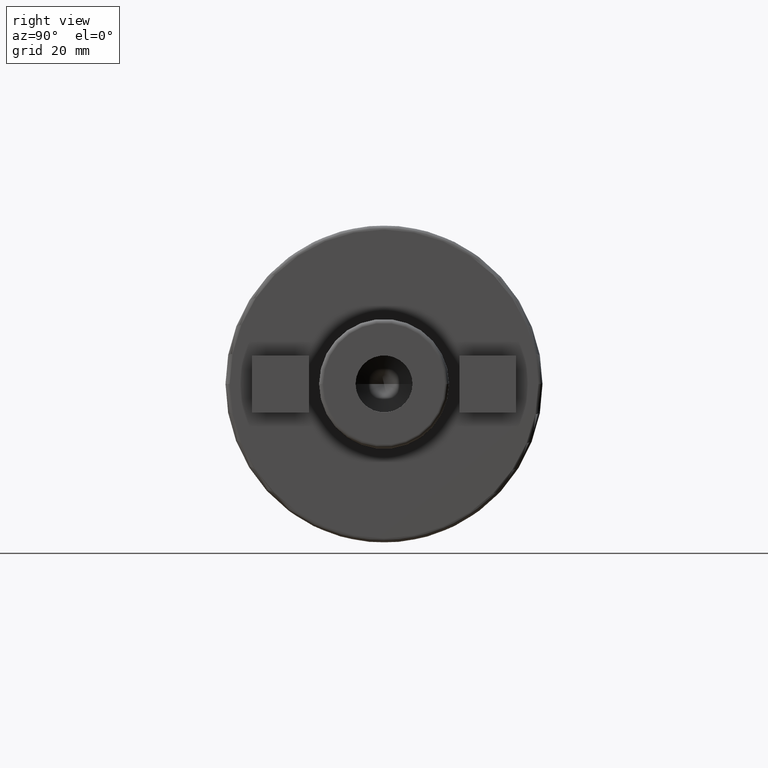
[diagram: clean part render]
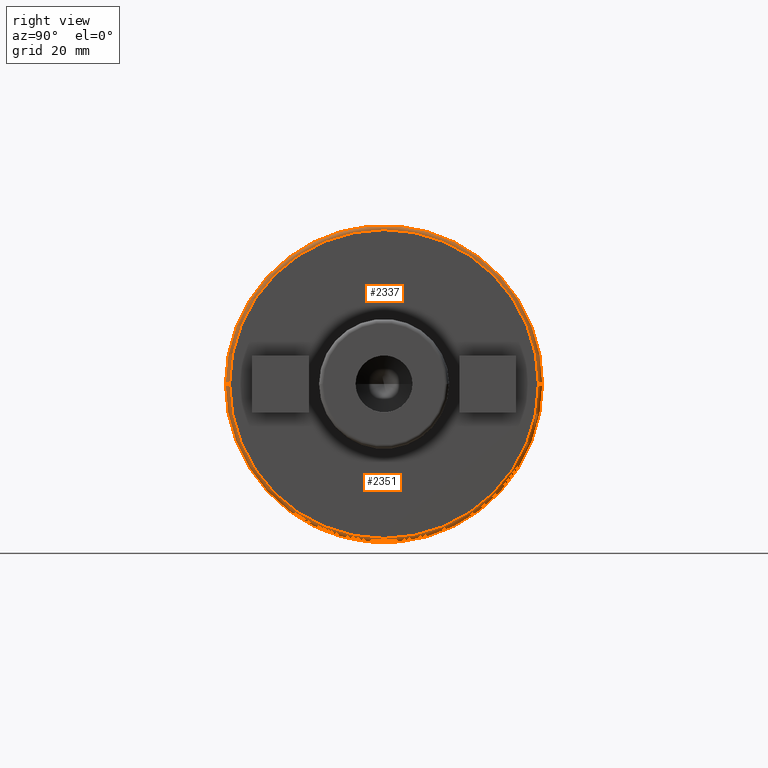
[diagram: same view with one multi-face feature highlighted, each face labeled with its STEP entity id]
A machine part, right view. The highlighted faces form ONE feature: a constant-radius fillet chain: 2 tangent blend faces with common blend radius 1 mm. The faces share edges in the B-rep.
Their STEP definitions:
[1] entity #2337 (Torus):
#377=CARTESIAN_POINT('',(4.9E1,0.E0,0.E0));
#378=DIRECTION('',(1.E0,0.E0,0.E0));
#379=DIRECTION('',(0.E0,1.E0,0.E0));
#380=AXIS2_PLACEMENT_3D('',#377,#378,#379);
#387=CARTESIAN_POINT('',(4.9E1,-3.8E1,0.E0));
#388=DIRECTION('',(0.E0,0.E0,-1.E0));
#389=DIRECTION('',(1.E0,0.E0,0.E0));
#390=AXIS2_PLACEMENT_3D('',#387,#388,#389);
#392=CARTESIAN_POINT('',(4.9E1,3.8E1,0.E0));
#393=DIRECTION('',(0.E0,0.E0,1.E0));
#394=DIRECTION('',(1.E0,-2.131628207280E-14,0.E0));
#395=AXIS2_PLACEMENT_3D('',#392,#393,#394);
#430=CARTESIAN_POINT('',(5.E1,0.E0,0.E0));
#431=DIRECTION('',(1.E0,0.E0,0.E0));
#432=DIRECTION('',(0.E0,1.E0,0.E0));
#433=AXIS2_PLACEMENT_3D('',#430,#431,#432);
#1754=CARTESIAN_POINT('',(4.9E1,-3.9E1,0.E0));
#1755=CARTESIAN_POINT('',(4.9E1,3.9E1,0.E0));
#1756=VERTEX_POINT('',#1754);
#1757=VERTEX_POINT('',#1755);
#1758=CARTESIAN_POINT('',(5.E1,-3.8E1,0.E0));
#1759=CARTESIAN_POINT('',(5.E1,3.8E1,0.E0));
#1760=VERTEX_POINT('',#1758);
#1761=VERTEX_POINT('',#1759);
#2323=CARTESIAN_POINT('',(4.9E1,0.E0,0.E0));
#2324=DIRECTION('',(1.E0,0.E0,0.E0));
#2325=DIRECTION('',(0.E0,-9.999928138765E-1,-3.791067842024E-3));
#2326=AXIS2_PLACEMENT_3D('',#2323,#2324,#2325);
#2327=TOROIDAL_SURFACE('',#2326,3.8E1,1.E0);
#2328=ORIENTED_EDGE('',*,*,#2313,.F.);
#2330=ORIENTED_EDGE('',*,*,#2329,.F.);
#2332=ORIENTED_EDGE('',*,*,#2331,.T.);
#2334=ORIENTED_EDGE('',*,*,#2333,.T.);
#2335=EDGE_LOOP('',(#2328,#2330,#2332,#2334));
#2336=FACE_OUTER_BOUND('',#2335,.F.);
#2337=ADVANCED_FACE('',(#2336),#2327,.T.);
#381=CIRCLE('',#380,3.9E1);
#391=CIRCLE('',#390,1.E0);
#396=CIRCLE('',#395,1.E0);
#434=CIRCLE('',#433,3.8E1);
#2313=EDGE_CURVE('',#1757,#1756,#381,.T.);
#2329=EDGE_CURVE('',#1761,#1757,#396,.T.);
#2331=EDGE_CURVE('',#1761,#1760,#434,.T.);
#2333=EDGE_CURVE('',#1760,#1756,#391,.T.);
[2] entity #2351 (Torus):
#387=CARTESIAN_POINT('',(4.9E1,-3.8E1,0.E0));
#388=DIRECTION('',(0.E0,0.E0,-1.E0));
#389=DIRECTION('',(1.E0,0.E0,0.E0));
#390=AXIS2_PLACEMENT_3D('',#387,#388,#389);
#392=CARTESIAN_POINT('',(4.9E1,3.8E1,0.E0));
#393=DIRECTION('',(0.E0,0.E0,1.E0));
#394=DIRECTION('',(1.E0,-2.131628207280E-14,0.E0));
#395=AXIS2_PLACEMENT_3D('',#392,#393,#394);
#397=CARTESIAN_POINT('',(4.9E1,0.E0,0.E0));
#398=DIRECTION('',(1.E0,0.E0,0.E0));
#399=DIRECTION('',(0.E0,-1.E0,0.E0));
#400=AXIS2_PLACEMENT_3D('',#397,#398,#399);
#425=CARTESIAN_POINT('',(5.E1,0.E0,0.E0));
#426=DIRECTION('',(1.E0,0.E0,0.E0));
#427=DIRECTION('',(0.E0,-1.E0,0.E0));
#428=AXIS2_PLACEMENT_3D('',#425,#426,#427);
#1754=CARTESIAN_POINT('',(4.9E1,-3.9E1,0.E0));
#1755=CARTESIAN_POINT('',(4.9E1,3.9E1,0.E0));
#1756=VERTEX_POINT('',#1754);
#1757=VERTEX_POINT('',#1755);
#1758=CARTESIAN_POINT('',(5.E1,-3.8E1,0.E0));
#1759=CARTESIAN_POINT('',(5.E1,3.8E1,0.E0));
#1760=VERTEX_POINT('',#1758);
#1761=VERTEX_POINT('',#1759);
#2338=CARTESIAN_POINT('',(4.9E1,0.E0,0.E0));
#2339=DIRECTION('',(1.E0,0.E0,0.E0));
#2340=DIRECTION('',(0.E0,9.999928138765E-1,3.791067842024E-3));
#2341=AXIS2_PLACEMENT_3D('',#2338,#2339,#2340);
#2342=TOROIDAL_SURFACE('',#2341,3.8E1,1.E0);
#2344=ORIENTED_EDGE('',*,*,#2343,.F.);
#2345=ORIENTED_EDGE('',*,*,#2333,.F.);
#2347=ORIENTED_EDGE('',*,*,#2346,.T.);
#2348=ORIENTED_EDGE('',*,*,#2329,.T.);
#2349=EDGE_LOOP('',(#2344,#2345,#2347,#2348));
#2350=FACE_OUTER_BOUND('',#2349,.F.);
#2351=ADVANCED_FACE('',(#2350),#2342,.T.);
#391=CIRCLE('',#390,1.E0);
#396=CIRCLE('',#395,1.E0);
#401=CIRCLE('',#400,3.9E1);
#429=CIRCLE('',#428,3.8E1);
#2329=EDGE_CURVE('',#1761,#1757,#396,.T.);
#2333=EDGE_CURVE('',#1760,#1756,#391,.T.);
#2343=EDGE_CURVE('',#1756,#1757,#401,.T.);
#2346=EDGE_CURVE('',#1760,#1761,#429,.T.);